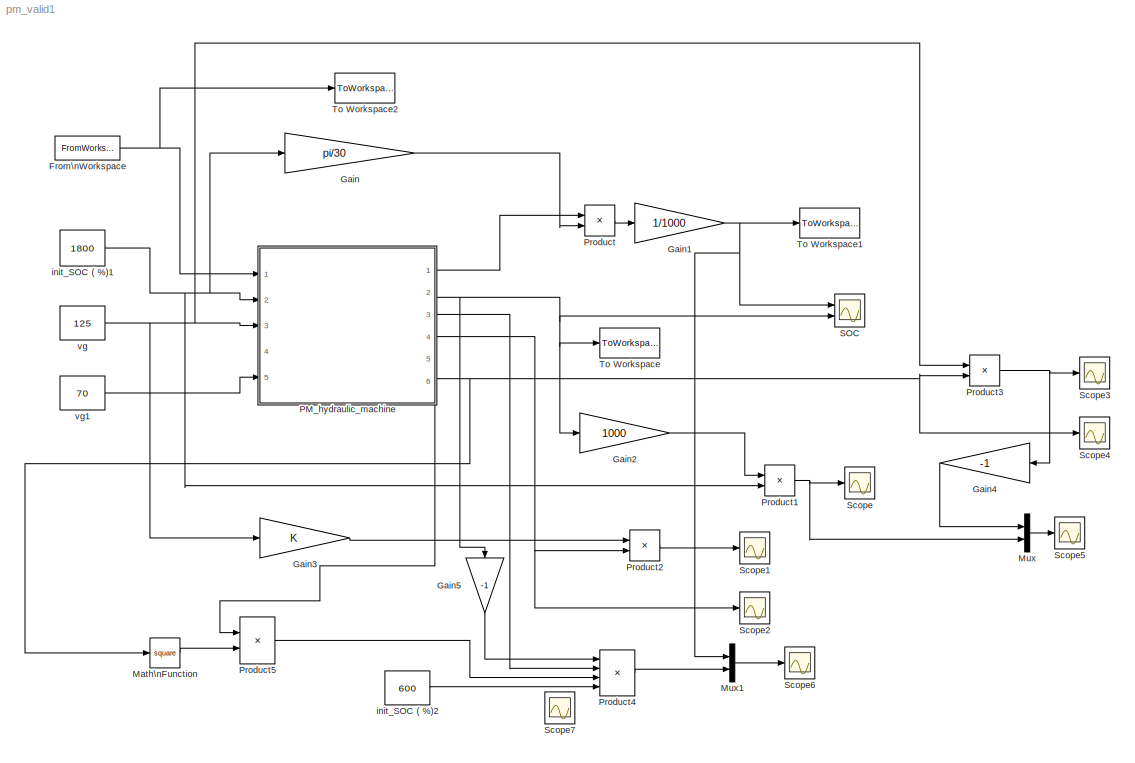
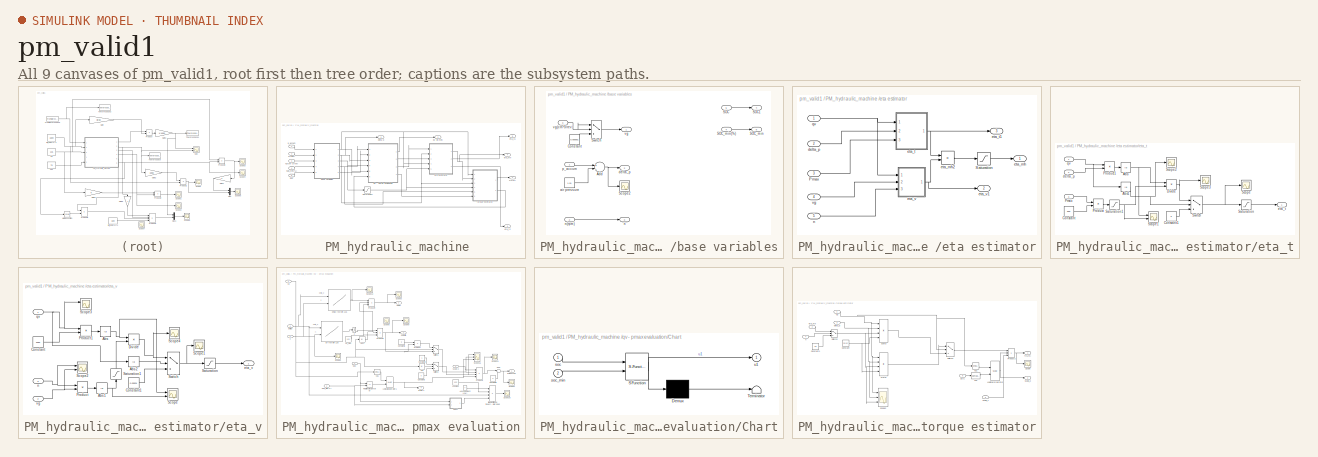
[diagram: thumbnail index - all 9 canvases of the model, root first then tree order]
MODEL pm_valid1
KIND model
BLOCK [FromWorkspace] From\nWorkspace
  SID = 624
  SampleTime = 0
  VariableName = Dp
  ZeroCross = on
BLOCK [Gain] Gain
  Gain = pi/30
  OutDataTypeStr = Inherit: Inherit via internal rule
  ParamDataTypeStr = Inherit: Inherit via internal rule
  SID = 628
  SaturateOnIntegerOverflow = off
BLOCK [Gain] Gain1
  Gain = 1/1000
  OutDataTypeStr = Inherit: Inherit via internal rule
  ParamDataTypeStr = Inherit: Inherit via internal rule
  SID = 629
  SaturateOnIntegerOverflow = off
BLOCK [Gain] Gain2
  Gain = 1000
  OutDataTypeStr = Inherit: Inherit via internal rule
  ParamDataTypeStr = Inherit: Inherit via internal rule
  SID = 632
  SaturateOnIntegerOverflow = off
BLOCK [Gain] Gain3
  OutDataTypeStr = Inherit: Inherit via internal rule
  ParamDataTypeStr = Inherit: Inherit via internal rule
  SID = 636
  SaturateOnIntegerOverflow = off
BLOCK [Gain] Gain4
  Gain = -1
  OutDataTypeStr = Inherit: Inherit via internal rule
  ParamDataTypeStr = Inherit: Inherit via internal rule
  SID = 645
  SaturateOnIntegerOverflow = off
BLOCK [Gain] Gain5
  Gain = -1
  OutDataTypeStr = Inherit: Inherit via internal rule
  ParamDataTypeStr = Inherit: Inherit via internal rule
  SID = 652
  SaturateOnIntegerOverflow = off
BLOCK [Math] Math\nFunction
  Operator = square
  Ports = [1, 1]
  SID = 657
BLOCK [Mux] Mux
  DisplayOption = bar
  Inputs = 2
  Ports = [2, 1]
  SID = 644
BLOCK [Mux] Mux1
  DisplayOption = bar
  Inputs = 2
  Ports = [2, 1]
  SID = 648
BLOCK [SubSystem] PM_hydraulic_machine 
  FunctionWithSeparateData = off
  MaskHideContents = off
  MinAlgLoopOccurrences = off
  Opaque = off
  Ports = [5, 6]
  PropExecContextOutsideSubsystem = off
  RTWSystemCode = Auto
  RequestExecContextInheritance = off
  SID = 341
BLOCK [Inport] PM_hydraulic_machine /SOC
  IconDisplay = Port number
  Port = 5
  SID = 346
BLOCK [Inport] PM_hydraulic_machine /SOC_min(%)
  IconDisplay = Port number
  Port = 4
  SID = 345
BLOCK [Saturate] PM_hydraulic_machine /Saturation1
  InputPortMap = u0
  LowerLimit = 0.00001
  Ports = [1, 1]
  SID = 347
  UpperLimit = inf
BLOCK [Outport] PM_hydraulic_machine /T(N.m)
  IconDisplay = Port number
  SID = 478
BLOCK [SubSystem] PM_hydraulic_machine /base variables
  FunctionWithSeparateData = off
  MaskHideContents = off
  MinAlgLoopOccurrences = off
  Opaque = off
  Ports = [5, 5]
  PropExecContextOutsideSubsystem = off
  RTWSystemCode = Auto
  RequestExecContextInheritance = off
  SID = 348
BLOCK [Sum] PM_hydraulic_machine /base variables/Add
  InputSameDT = off
  Inputs = +-
  OutDataTypeStr = Inherit: Inherit via internal rule
  Ports = [2, 1]
  SID = 354
  SaturateOnIntegerOverflow = off
BLOCK [Constant] PM_hydraulic_machine /base variables/Constant
  SID = 355
  Value = 0.000001
BLOCK [Inport] PM_hydraulic_machine /base variables/SOC
  IconDisplay = Port number
  Port = 5
  SID = 353
BLOCK [Outport] PM_hydraulic_machine /base variables/SOC1
  IconDisplay = Port number
  Port = 4
  SID = 362
BLOCK [Outport] PM_hydraulic_machine /base variables/SOC_min
  IconDisplay = Port number
  Port = 5
  SID = 363
BLOCK [Inport] PM_hydraulic_machine /base variables/SOC_min(%)
  IconDisplay = Port number
  Port = 4
  SID = 352
BLOCK [Scope] PM_hydraulic_machine /base variables/Scope2
  DataFormat = StructureWithTime
  Floating = off
  NumInputPorts = 1
  Ports = [1]
  SID = 356
  SampleTime = 0
  SaveName = ScopeData49
  TimeRange = 2
  YMax = 194
  YMin = 181
  ZoomMode = yonly
BLOCK [Switch] PM_hydraulic_machine /base variables/Switch
  Criteria = u2 ~= 0
  InputSameDT = off
  SID = 357
  SaturateOnIntegerOverflow = off
BLOCK [Constant] PM_hydraulic_machine /base variables/air pressure
  SID = 358
  Value = 1.01
BLOCK [Outport] PM_hydraulic_machine /base variables/delta_p
  IconDisplay = Port number
  Port = 2
  SID = 360
BLOCK [Outport] PM_hydraulic_machine /base variables/n
  IconDisplay = Port number
  Port = 3
  SID = 361
BLOCK [Inport] PM_hydraulic_machine /base variables/n(rpm)
  IconDisplay = Port number
  Port = 2
  SID = 350
BLOCK [Inport] PM_hydraulic_machine /base variables/p_accum
  IconDisplay = Port number
  SID = 349
BLOCK [Outport] PM_hydraulic_machine /base variables/vg
  IconDisplay = Port number
  SID = 359
BLOCK [Inport] PM_hydraulic_machine /base variables/vg(cm^3//rev)
  IconDisplay = Port number
  Port = 3
  SID = 351
BLOCK [Outport] PM_hydraulic_machine /delta p
  IconDisplay = Port number
  Port = 3
  SID = 480
BLOCK [SubSystem] PM_hydraulic_machine /eta estimator
  FunctionWithSeparateData = off
  MaskHideContents = off
  MinAlgLoopOccurrences = off
  Opaque = off
  Ports = [5, 3]
  PropExecContextOutsideSubsystem = off
  RTWSystemCode = Auto
  RequestExecContextInheritance = off
  SID = 364
BLOCK [Inport] PM_hydraulic_machine /eta estimator/Pmax
  IconDisplay = Port number
  Port = 3
  SID = 367
BLOCK [Saturate] PM_hydraulic_machine /eta estimator/Saturation
  InputPortMap = u0
  LowerLimit = 0.75
  Ports = [1, 1]
  SID = 370
  UpperLimit = 1
BLOCK [Inport] PM_hydraulic_machine /eta estimator/delta_p
  IconDisplay = Port number
  Port = 2
  SID = 366
BLOCK [Outport] PM_hydraulic_machine /eta estimator/eta_mh
  IconDisplay = Port number
  SID = 412
BLOCK [Product] PM_hydraulic_machine /eta estimator/eta_mh2
  InputSameDT = off
  Inputs = */
  OutDataTypeStr = Inherit: Inherit via internal rule
  Ports = [2, 1]
  RndMeth = Floor
  SID = 371
  SaturateOnIntegerOverflow = off
BLOCK [SubSystem] PM_hydraulic_machine /eta estimator/eta_t
  FunctionWithSeparateData = off
  MaskHideContents = off
  MinAlgLoopOccurrences = off
  Opaque = off
  Ports = [3, 1]
  PropExecContextOutsideSubsystem = off
  RTWSystemCode = Auto
  RequestExecContextInheritance = off
  SID = 372
BLOCK [Abs] PM_hydraulic_machine /eta estimator/eta_t/Abs
  SID = 376
  SaturateOnIntegerOverflow = off
BLOCK [Abs] PM_hydraulic_machine /eta estimator/eta_t/Abs1
  SID = 377
  SaturateOnIntegerOverflow = off
BLOCK [Constant] PM_hydraulic_machine /eta estimator/eta_t/Constant
  SID = 378
  Value = 600
BLOCK [Constant] PM_hydraulic_machine /eta estimator/eta_t/Constant1
  SID = 379
  Value = 0
BLOCK [Product] PM_hydraulic_machine /eta estimator/eta_t/Divide
  InputSameDT = off
  Inputs = */
  OutDataTypeStr = Inherit: Inherit via internal rule
  Ports = [2, 1]
  RndMeth = Floor
  SID = 380
  SaturateOnIntegerOverflow = off
BLOCK [Inport] PM_hydraulic_machine /eta estimator/eta_t/Pmax
  IconDisplay = Port number
  Port = 3
  SID = 375
BLOCK [Product] PM_hydraulic_machine /eta estimator/eta_t/Product
  InputSameDT = off
  OutDataTypeStr = Inherit: Inherit via internal rule
  Ports = [2, 1]
  SID = 381
  SaturateOnIntegerOverflow = off
BLOCK [Product] PM_hydraulic_machine /eta estimator/eta_t/Product1
  InputSameDT = off
  OutDataTypeStr = Inherit: Inherit via internal rule
  Ports = [2, 1]
  SID = 382
  SaturateOnIntegerOverflow = off
BLOCK [Saturate] PM_hydraulic_machine /eta estimator/eta_t/Saturation
  InputPortMap = u0
  LowerLimit = 0
  Ports = [1, 1]
  SID = 383
  UpperLimit = 1
BLOCK [Saturate] PM_hydraulic_machine /eta estimator/eta_t/Saturation1
  InputPortMap = u0
  LowerLimit = 0.0000001
  Ports = [1, 1]
  SID = 384
  UpperLimit = inf
BLOCK [Scope] PM_hydraulic_machine /eta estimator/eta_t/Scope
  DataFormat = StructureWithTime
  Floating = off
  NumInputPorts = 1
  Ports = [1]
  SID = 385
  SampleTime = 0
  SaveName = ScopeData29
  ZoomMode = xonly
BLOCK [Scope] PM_hydraulic_machine /eta estimator/eta_t/Scope1
  DataFormat = StructureWithTime
  Floating = off
  NumInputPorts = 2
  Ports = [2]
  SID = 386
  SampleTime = 0
  SaveName = ScopeData30
  TimeRange = 2.2
  YMax = 5~5
  YMin = -5~-5
BLOCK [Scope] PM_hydraulic_machine /eta estimator/eta_t/Scope2
  DataFormat = StructureWithTime
  Floating = off
  NumInputPorts = 1
  Ports = [1]
  SID = 387
  SampleTime = 0
  SaveName = ScopeData50
  YMax = 190
  YMin = 0
BLOCK [Scope] PM_hydraulic_machine /eta estimator/eta_t/Scope3
  DataFormat = StructureWithTime
  Floating = off
  NumInputPorts = 1
  Ports = [1]
  SID = 388
  SampleTime = 0
  SaveName = ScopeData51
  YMax = 190
  YMin = 0
BLOCK [Switch] PM_hydraulic_machine /eta estimator/eta_t/Switch
  InputSameDT = off
  SID = 389
  SaturateOnIntegerOverflow = off
  Threshold = 0.1
BLOCK [Inport] PM_hydraulic_machine /eta estimator/eta_t/delta_p
  IconDisplay = Port number
  Port = 2
  SID = 374
BLOCK [Outport] PM_hydraulic_machine /eta estimator/eta_t/eta_t
  IconDisplay = Port number
  SID = 390
BLOCK [Inport] PM_hydraulic_machine /eta estimator/eta_t/qv
  IconDisplay = Port number
  SID = 373
BLOCK [Outport] PM_hydraulic_machine /eta estimator/eta_t1
  IconDisplay = Port number
  Port = 3
  SID = 653
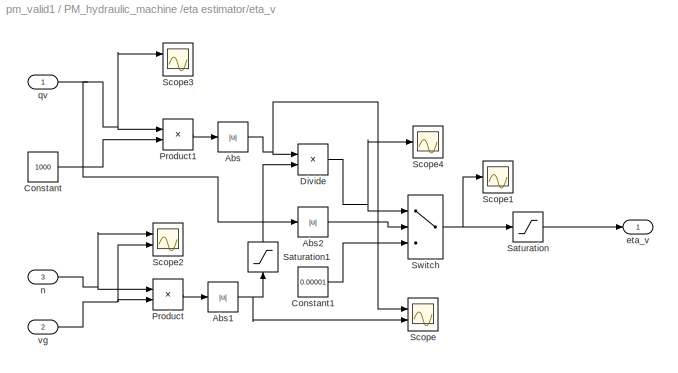
BLOCK [SubSystem] PM_hydraulic_machine /eta estimator/eta_v
  FunctionWithSeparateData = off
  MaskHideContents = off
  MinAlgLoopOccurrences = off
  Opaque = off
  Ports = [3, 1]
  PropExecContextOutsideSubsystem = off
  RTWSystemCode = Auto
  RequestExecContextInheritance = off
  SID = 391
BLOCK [Abs] PM_hydraulic_machine /eta estimator/eta_v/Abs
  SID = 395
  SaturateOnIntegerOverflow = off
BLOCK [Abs] PM_hydraulic_machine /eta estimator/eta_v/Abs1
  SID = 396
  SaturateOnIntegerOverflow = off
BLOCK [Abs] PM_hydraulic_machine /eta estimator/eta_v/Abs2
  SID = 397
  SaturateOnIntegerOverflow = off
BLOCK [Constant] PM_hydraulic_machine /eta estimator/eta_v/Constant
  SID = 398
  Value = 1000
BLOCK [Constant] PM_hydraulic_machine /eta estimator/eta_v/Constant1
  SID = 399
  Value = 0.00001
BLOCK [Product] PM_hydraulic_machine /eta estimator/eta_v/Divide
  InputSameDT = off
  Inputs = */
  OutDataTypeStr = Inherit: Inherit via internal rule
  Ports = [2, 1]
  RndMeth = Floor
  SID = 400
  SaturateOnIntegerOverflow = off
BLOCK [Product] PM_hydraulic_machine /eta estimator/eta_v/Product
  InputSameDT = off
  OutDataTypeStr = Inherit: Inherit via internal rule
  Ports = [2, 1]
  SID = 401
  SaturateOnIntegerOverflow = off
BLOCK [Product] PM_hydraulic_machine /eta estimator/eta_v/Product1
  InputSameDT = off
  OutDataTypeStr = Inherit: Inherit via internal rule
  Ports = [2, 1]
  SID = 402
  SaturateOnIntegerOverflow = off
BLOCK [Saturate] PM_hydraulic_machine /eta estimator/eta_v/Saturation
  InputPortMap = u0
  LowerLimit = 0.000001
  Ports = [1, 1]
  SID = 403
  UpperLimit = 1
BLOCK [Saturate] PM_hydraulic_machine /eta estimator/eta_v/Saturation1
  InputPortMap = u0
  LowerLimit = 0.0000001
  Ports = [1, 1]
  SID = 404
  UpperLimit = inf
BLOCK [Scope] PM_hydraulic_machine /eta estimator/eta_v/Scope
  DataFormat = StructureWithTime
  Floating = off
  NumInputPorts = 2
  Ports = [2]
  SID = 405
  SampleTime = 0
  SaveName = ScopeData43
  TimeRange = 2
  YMax = 5~5
  YMin = -5~-5
  ZoomMode = yonly
BLOCK [Scope] PM_hydraulic_machine /eta estimator/eta_v/Scope1
  DataFormat = StructureWithTime
  Floating = off
  NumInputPorts = 1
  Ports = [1]
  SID = 406
  SampleTime = 0
  SaveName = ScopeData44
  TimeRange = 2
  ZoomMode = yonly
BLOCK [Scope] PM_hydraulic_machine /eta estimator/eta_v/Scope2
  DataFormat = StructureWithTime
  Floating = off
  NumInputPorts = 2
  Ports = [2]
  SID = 407
  SampleTime = 0
  SaveName = ScopeData45
  TimeRange = 2
  YMax = 5~5
  YMin = -5~-5
  ZoomMode = yonly
BLOCK [Scope] PM_hydraulic_machine /eta estimator/eta_v/Scope3
  DataFormat = StructureWithTime
  Floating = off
  NumInputPorts = 2
  Ports = [2]
  SID = 408
  SampleTime = 0
  SaveName = ScopeData46
  TimeRange = 2
  YMax = 5~5
  YMin = -5~-5
  ZoomMode = yonly
BLOCK [Scope] PM_hydraulic_machine /eta estimator/eta_v/Scope4
  DataFormat = StructureWithTime
  Floating = off
  NumInputPorts = 1
  Ports = [1]
  SID = 409
  SampleTime = 0
  SaveName = ScopeData52
  ZoomMode = yonly
BLOCK [Switch] PM_hydraulic_machine /eta estimator/eta_v/Switch
  InputSameDT = off
  SID = 410
  SaturateOnIntegerOverflow = off
  Threshold = 1
BLOCK [Outport] PM_hydraulic_machine /eta estimator/eta_v/eta_v
  IconDisplay = Port number
  SID = 411
BLOCK [Inport] PM_hydraulic_machine /eta estimator/eta_v/n
  IconDisplay = Port number
  Port = 3
  SID = 394
BLOCK [Inport] PM_hydraulic_machine /eta estimator/eta_v/qv
  IconDisplay = Port number
  SID = 392
BLOCK [Inport] PM_hydraulic_machine /eta estimator/eta_v/vg
  IconDisplay = Port number
  Port = 2
  SID = 393
BLOCK [Outport] PM_hydraulic_machine /eta estimator/eta_v1
  IconDisplay = Port number
  Port = 2
  SID = 639
BLOCK [Inport] PM_hydraulic_machine /eta estimator/n
  IconDisplay = Port number
  Port = 5
  SID = 369
BLOCK [Inport] PM_hydraulic_machine /eta estimator/qv
  IconDisplay = Port number
  SID = 365
BLOCK [Inport] PM_hydraulic_machine /eta estimator/vg
  IconDisplay = Port number
  Port = 4
  SID = 368
BLOCK [Outport] PM_hydraulic_machine /eta_mh
  IconDisplay = Port number
  Port = 4
  SID = 634
BLOCK [Outport] PM_hydraulic_machine /eta_t2
  IconDisplay = Port number
  Port = 6
  SID = 654
BLOCK [Outport] PM_hydraulic_machine /eta_v1
  IconDisplay = Port number
  Port = 5
  SID = 640
BLOCK [Inport] PM_hydraulic_machine /n(rpm)
  IconDisplay = Port number
  Port = 2
  SID = 343
BLOCK [Inport] PM_hydraulic_machine /p_accum
  IconDisplay = Port number
  SID = 342
BLOCK [Outport] PM_hydraulic_machine /qv (lit//min)
  IconDisplay = Port number
  Port = 2
  SID = 479
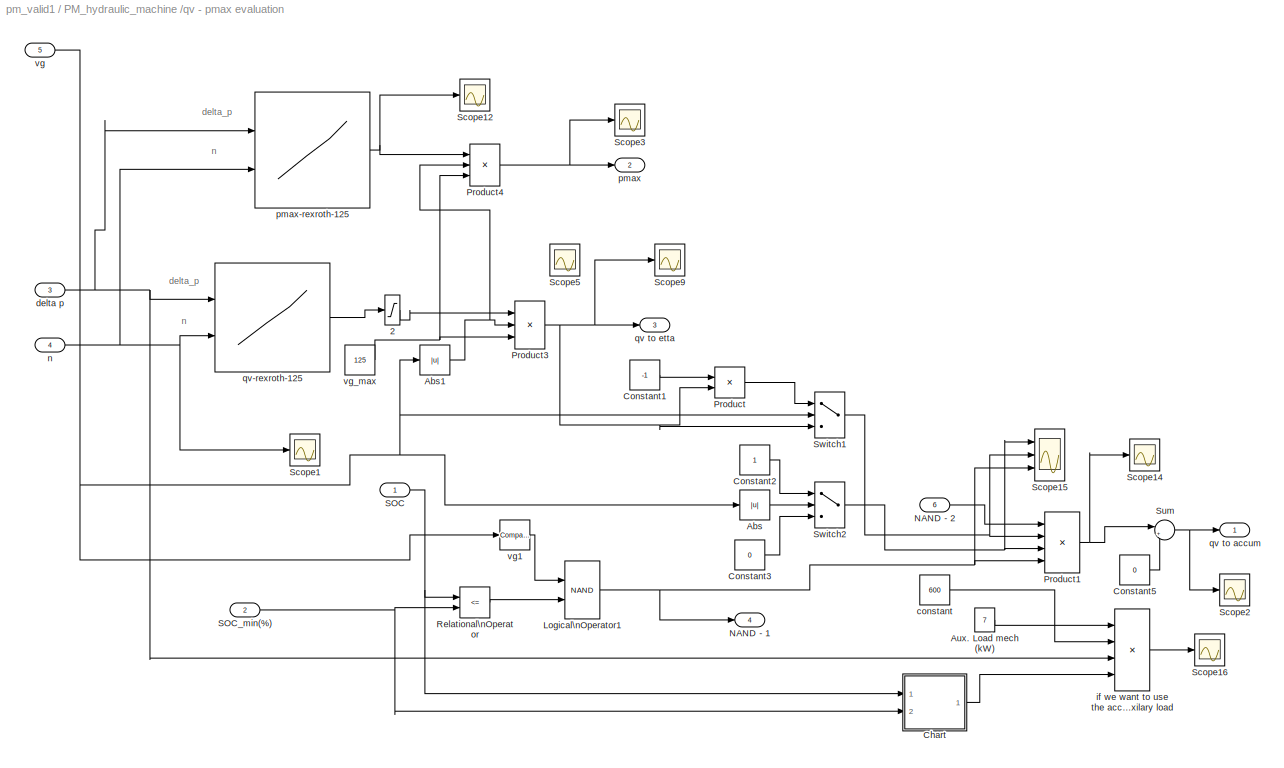
BLOCK [SubSystem] PM_hydraulic_machine /qv - pmax evaluation
  FunctionWithSeparateData = off
  MaskHideContents = off
  MinAlgLoopOccurrences = off
  Opaque = off
  Ports = [6, 4]
  PropExecContextOutsideSubsystem = off
  RTWSystemCode = Auto
  RequestExecContextInheritance = off
  SID = 413
BLOCK [Saturate] PM_hydraulic_machine /qv - pmax evaluation/2
  InputPortMap = u0
  LowerLimit = 0
  Ports = [1, 1]
  SID = 420
  UpperLimit = inf
BLOCK [Abs] PM_hydraulic_machine /qv - pmax evaluation/Abs
  SID = 421
  SaturateOnIntegerOverflow = off
BLOCK [Abs] PM_hydraulic_machine /qv - pmax evaluation/Abs1
  SID = 422
  SaturateOnIntegerOverflow = off
BLOCK [Constant] PM_hydraulic_machine /qv - pmax evaluation/Aux. Load mech (kW)
  SID = 423
  Value = 7
BLOCK [SubSystem] PM_hydraulic_machine /qv - pmax evaluation/Chart
  ErrorFcn = Stateflow.Translate.translate
  FunctionWithSeparateData = off
  MaskDescription = Stateflow diagram
  MaskDisplay = plot(sf('Private','sfblk','xIcon'),sf('Private','sfblk','yIcon'));text(0.5,0,sf('Private', 'sfblk', 'tIcon'),'HorizontalAl','Center','VerticalAl','Bottom');
  MaskHideContents = off
  MaskIconFrame = off
  MaskIconOpaque = off
  MaskIconRotate = none
  MaskIconUnits = autoscale
  MaskPortRotate = default
  MaskSelfModifiable = on
  MaskType = Stateflow
  MinAlgLoopOccurrences = off
  Opaque = off
  PermitHierarchicalResolution = ExplicitOnly
  Ports = [2, 1]
  PropExecContextOutsideSubsystem = off
  RTWSystemCode = Auto
  RequestExecContextInheritance = off
  SID = 424
  TreatAsAtomicUnit = on
BLOCK [Demux] PM_hydraulic_machine /qv - pmax evaluation/Chart/ Demux 
  Outputs = 1
  Ports = [1, 1]
  SID = 424::8
BLOCK [S-Function] PM_hydraulic_machine /qv - pmax evaluation/Chart/ SFunction 
  EnableBusSupport = on
  FunctionName = sf_sfun
  PortCounts = [2 2]
  Ports = [2, 2]
  SID = 424::7
  Tag = Stateflow S-Function pm_valid1 4
BLOCK [Terminator] PM_hydraulic_machine /qv - pmax evaluation/Chart/ Terminator 
  SID = 424::10
BLOCK [Inport] PM_hydraulic_machine /qv - pmax evaluation/Chart/soc
  IconDisplay = Port number
  SID = 424::1
BLOCK [Inport] PM_hydraulic_machine /qv - pmax evaluation/Chart/soc_min
  IconDisplay = Port number
  Port = 2
  SID = 424::2
BLOCK [Outport] PM_hydraulic_machine /qv - pmax evaluation/Chart/u1
  IconDisplay = Port number
  SID = 424::6
BLOCK [Constant] PM_hydraulic_machine /qv - pmax evaluation/Constant1
  SID = 425
  Value = -1
BLOCK [Constant] PM_hydraulic_machine /qv - pmax evaluation/Constant2
  SID = 426
BLOCK [Constant] PM_hydraulic_machine /qv - pmax evaluation/Constant3
  SID = 427
  Value = 0
BLOCK [Constant] PM_hydraulic_machine /qv - pmax evaluation/Constant5
  SID = 428
  Value = 0
BLOCK [Logic] PM_hydraulic_machine /qv - pmax evaluation/Logical\nOperator1
  AllPortsSameDT = off
  Operator = NAND
  OutDataTypeStr = boolean
  Ports = [2, 1]
  SID = 429
BLOCK [Outport] PM_hydraulic_machine /qv - pmax evaluation/NAND - 1
  IconDisplay = Port number
  Port = 4
  SID = 456
BLOCK [Inport] PM_hydraulic_machine /qv - pmax evaluation/NAND - 2
  IconDisplay = Port number
  Port = 6
  SID = 419
BLOCK [Product] PM_hydraulic_machine /qv - pmax evaluation/Product
  InputSameDT = off
  OutDataTypeStr = Inherit: Inherit via internal rule
  Ports = [2, 1]
  SID = 430
  SaturateOnIntegerOverflow = off
BLOCK [Product] PM_hydraulic_machine /qv - pmax evaluation/Product1
  InputSameDT = off
  Inputs = 4
  OutDataTypeStr = Inherit: Inherit via internal rule
  Ports = [4, 1]
  SID = 431
  SaturateOnIntegerOverflow = off
BLOCK [Product] PM_hydraulic_machine /qv - pmax evaluation/Product3
  InputSameDT = off
  Inputs = **/
  OutDataTypeStr = Inherit: Inherit via internal rule
  Ports = [3, 1]
  SID = 432
  SaturateOnIntegerOverflow = off
BLOCK [Product] PM_hydraulic_machine /qv - pmax evaluation/Product4
  InputSameDT = off
  Inputs = **/
  OutDataTypeStr = Inherit: Inherit via internal rule
  Ports = [3, 1]
  SID = 433
  SaturateOnIntegerOverflow = off
BLOCK [RelationalOperator] PM_hydraulic_machine /qv - pmax evaluation/Relational\nOperator
  InputSameDT = off
  Operator = <=
  OutDataTypeStr = boolean
  Ports = [2, 1]
  SID = 434
BLOCK [Inport] PM_hydraulic_machine /qv - pmax evaluation/SOC
  IconDisplay = Port number
  SID = 414
BLOCK [Inport] PM_hydraulic_machine /qv - pmax evaluation/SOC_min(%)
  IconDisplay = Port number
  Port = 2
  SID = 415
BLOCK [Scope] PM_hydraulic_machine /qv - pmax evaluation/Scope1
  DataFormat = StructureWithTime
  Floating = off
  NumInputPorts = 1
  Ports = [1]
  SID = 435
  SampleTime = 0
  SaveName = ScopeData79
  YMax = 880
  YMin = 660
  ZoomMode = xonly
BLOCK [Scope] PM_hydraulic_machine /qv - pmax evaluation/Scope12
  DataFormat = StructureWithTime
  Floating = off
  NumInputPorts = 1
  Ports = [1]
  SID = 436
  SampleTime = 0
  SaveName = ScopeData81
  YMax = 350
  YMin = -200
BLOCK [Scope] PM_hydraulic_machine /qv - pmax evaluation/Scope14
  DataFormat = StructureWithTime
  Floating = off
  NumInputPorts = 1
  Ports = [1]
  SID = 437
  SampleTime = 0
  SaveName = ScopeData54
  TimeRange = 2
  YMax = 5.413
  YMin = 5.391
  ZoomMode = yonly
BLOCK [Scope] PM_hydraulic_machine /qv - pmax evaluation/Scope15
  DataFormat = StructureWithTime
  Floating = off
  NumInputPorts = 3
  Ports = [3]
  SID = 438
  SampleTime = 0
  SaveName = ScopeData72
  YMax = 350~5~5
  YMin = -200~-5~-5
  ZoomMode = yonly
BLOCK [Scope] PM_hydraulic_machine /qv - pmax evaluation/Scope16
  DataFormat = StructureWithTime
  Floating = off
  NumInputPorts = 1
  Ports = [1]
  SID = 439
  SampleTime = 0
  SaveName = ScopeData96
  YMax = 6.1
  YMin = 5.45
  ZoomMode = xonly
BLOCK [Scope] PM_hydraulic_machine /qv - pmax evaluation/Scope2
  DataFormat = StructureWithTime
  Floating = off
  NumInputPorts = 1
  Ports = [1]
  SID = 440
  SampleTime = 0
  SaveName = ScopeData85
  YMax = 85
  YMin = -15
  ZoomMode = xonly
BLOCK [Scope] PM_hydraulic_machine /qv - pmax evaluation/Scope3
  DataFormat = StructureWithTime
  Floating = off
  NumInputPorts = 1
  Ports = [1]
  SID = 441
  SampleTime = 0
  SaveName = ScopeData87
  YMax = 350
  YMin = -200
BLOCK [Scope] PM_hydraulic_machine /qv - pmax evaluation/Scope5
  DataFormat = StructureWithTime
  Floating = off
  NumInputPorts = 1
  Ports = [1]
  SID = 442
  SampleTime = 0
  SaveName = ScopeData82
  TimeRange = 2
  YMax = 350
  YMin = -200
  ZoomMode = yonly
BLOCK [Scope] PM_hydraulic_machine /qv - pmax evaluation/Scope9
  DataFormat = StructureWithTime
  Floating = off
  NumInputPorts = 1
  Ports = [1]
  SID = 443
  SampleTime = 0
  SaveName = ScopeData86
  YMax = 350
  YMin = -200
BLOCK [Sum] PM_hydraulic_machine /qv - pmax evaluation/Sum
  IconShape = round
  InputSameDT = off
  Inputs = |+-
  OutDataTypeStr = Inherit: Inherit via internal rule
  Ports = [2, 1]
  SID = 444
  SaturateOnIntegerOverflow = off
BLOCK [Switch] PM_hydraulic_machine /qv - pmax evaluation/Switch1
  Criteria = u2 > Threshold
  InputSameDT = off
  SID = 445
  SaturateOnIntegerOverflow = off
BLOCK [Switch] PM_hydraulic_machine /qv - pmax evaluation/Switch2
  Criteria = u2 > Threshold
  InputSameDT = off
  SID = 446
  SaturateOnIntegerOverflow = off
  Threshold = 0.001
BLOCK [Constant] PM_hydraulic_machine /qv - pmax evaluation/constant
  SID = 447
  Value = 600
BLOCK [Inport] PM_hydraulic_machine /qv - pmax evaluation/delta p
  IconDisplay = Port number
  Port = 3
  SID = 416
BLOCK [Product] PM_hydraulic_machine /qv - pmax evaluation/if we want to use the accumulator for auxilary load
  InputSameDT = off
  Inputs = **/*
  OutDataTypeStr = Inherit: Inherit via internal rule
  Ports = [4, 1]
  SID = 448
  SaturateOnIntegerOverflow = off
BLOCK [Inport] PM_hydraulic_machine /qv - pmax evaluation/n
  IconDisplay = Port number
  Port = 4
  SID = 417
BLOCK [Outport] PM_hydraulic_machine /qv - pmax evaluation/pmax
  IconDisplay = Port number
  Port = 2
  SID = 454
BLOCK [Lookup2D] PM_hydraulic_machine /qv - pmax evaluation/pmax-rexroth-125
  ColumnIndex = [800:100:1800]
  InputSameDT = off
  RowIndex = [0:10:350]
  SID = 449
  SaturateOnIntegerOverflow = off
  Table = pmax_125
BLOCK [Outport] PM_hydraulic_machine /qv - pmax evaluation/qv to accum
  IconDisplay = Port number
  SID = 453
BLOCK [Outport] PM_hydraulic_machine /qv - pmax evaluation/qv to etta
  IconDisplay = Port number
  Port = 3
  SID = 455
BLOCK [Lookup2D] PM_hydraulic_machine /qv - pmax evaluation/qv-rexroth-125
  ColumnIndex = [100:100:1800]
  InputSameDT = off
  RowIndex = [0:10:350]
  SID = 450
  SaturateOnIntegerOverflow = off
  Table = qv_125_n
BLOCK [Inport] PM_hydraulic_machine /qv - pmax evaluation/vg
  IconDisplay = Port number
  Port = 5
  SID = 418
BLOCK [Reference] PM_hydraulic_machine /qv - pmax evaluation/vg1  REF=simulink/Logic and Bit\nOperations/Compare\nTo Constant
  FunctionWithSeparateData = off
  GeneratePreprocessorConditionals = off
  LogicOutDataTypeMode = uint8
  Ports = [1, 1]
  RTWMemSecDataConstants = Inherit from model
  RTWMemSecDataInternal = Inherit from model
  RTWMemSecDataParameters = Inherit from model
  RTWMemSecFuncExecute = Inherit from model
  RTWMemSecFuncInitTerm = Inherit from model
  SID = 451
  ShowPortLabels = FromPortIcon
  SourceBlock = simulink/Logic and Bit\nOperations/Compare\nTo Constant
  SourceType = Compare To Constant
  SystemSampleTime = -1
  ZeroCross = off
  const = 0
  relop = >
BLOCK [Constant] PM_hydraulic_machine /qv - pmax evaluation/vg_max
  SID = 452
  Value = 125
BLOCK [SubSystem] PM_hydraulic_machine /torque estimator
  FunctionWithSeparateData = off
  MaskHideContents = off
  MinAlgLoopOccurrences = off
  Opaque = off
  Ports = [6, 2]
  PropExecContextOutsideSubsystem = off
  RTWSystemCode = Auto
  RequestExecContextInheritance = off
  SID = 457
BLOCK [Constant] PM_hydraulic_machine /torque estimator/Constant
  SID = 464
  Value = 20*pi
BLOCK [Constant] PM_hydraulic_machine /torque estimator/Constant1
  SID = 465
  Value = 0.9
BLOCK [Logic] PM_hydraulic_machine /torque estimator/Logical\nOperator
  AllPortsSameDT = off
  Operator = NAND
  OutDataTypeStr = boolean
  Ports = [2, 1]
  SID = 466
BLOCK [Inport] PM_hydraulic_machine /torque estimator/NAND_1
  IconDisplay = Port number
  Port = 6
  SID = 463
BLOCK [Outport] PM_hydraulic_machine /torque estimator/NAND_2
  IconDisplay = Port number
  Port = 2
  SID = 477
BLOCK [Product] PM_hydraulic_machine /torque estimator/Product2
  InputSameDT = off
  Inputs = 3
  OutDataTypeStr = Inherit: Inherit via internal rule
  Ports = [3, 1]
  SID = 467
  SaturateOnIntegerOverflow = off
BLOCK [Inport] PM_hydraulic_machine /torque estimator/SOC
  IconDisplay = Port number
  Port = 5
  SID = 462
BLOCK [Scope] PM_hydraulic_machine /torque estimator/Scope
  DataFormat = StructureWithTime
  Floating = off
  NumInputPorts = 1
  Ports = [1]
  SID = 468
  SampleTime = 0
  SaveName = ScopeData6
  YMax = 300
  YMin = -100
  ZoomMode = xonly
BLOCK [Scope] PM_hydraulic_machine /torque estimator/Scope2
  DataFormat = StructureWithTime
  Floating = off
  NumInputPorts = 3
  Ports = [3]
  SID = 469
  SampleTime = 0
  SaveName = ScopeData8
  YMax = 75~170~0.86
  YMin = -20~167.7~0.75
  ZoomMode = xonly
BLOCK [Switch] PM_hydraulic_machine /torque estimator/Switch1
  Criteria = u2 > Threshold
  InputSameDT = off
  SID = 470
  SaturateOnIntegerOverflow = off
BLOCK [Switch] PM_hydraulic_machine /torque estimator/Switch2
  Criteria = u2 > Threshold
  InputSameDT = off
  SID = 471
  SaturateOnIntegerOverflow = off
  Threshold = 400
BLOCK [Outport] PM_hydraulic_machine /torque estimator/T(N.m)
  IconDisplay = Port number
  SID = 476
BLOCK [Inport] PM_hydraulic_machine /torque estimator/delta_p
  IconDisplay = Port number
  Port = 3
  SID = 460
BLOCK [Inport] PM_hydraulic_machine /torque estimator/eta_mh
  IconDisplay = Port number
  Port = 2
  SID = 459
BLOCK [Product] PM_hydraulic_machine /torque estimator/motor
  InputSameDT = off
  Inputs = ***/
  OutDataTypeStr = Inherit: Inherit via internal rule
  Ports = [4, 1]
  RndMeth = Floor
  SID = 472
  SaturateOnIntegerOverflow = off
BLOCK [Inport] PM_hydraulic_machine /torque estimator/n
  IconDisplay = Port number
  Port = 4
  SID = 461
BLOCK [Product] PM_hydraulic_machine /torque estimator/pump
  InputSameDT = off
  Inputs = **//
  OutDataTypeStr = Inherit: Inherit via internal rule
  Ports = [4, 1]
  RndMeth = Floor
  SID = 473
  SaturateOnIntegerOverflow = off
BLOCK [Reference] PM_hydraulic_machine /torque estimator/soc  REF=simulink/Logic and Bit\nOperations/Compare\nTo Constant
  FunctionWithSeparateData = off
  GeneratePreprocessorConditionals = off
  LogicOutDataTypeMode = uint8
  Ports = [1, 1]
  RTWMemSecDataConstants = Inherit from model
  RTWMemSecDataInternal = Inherit from model
  RTWMemSecDataParameters = Inherit from model
  RTWMemSecFuncExecute = Inherit from model
  RTWMemSecFuncInitTerm = Inherit from model
  SID = 474
  ShowPortLabels = FromPortIcon
  SourceBlock = simulink/Logic and Bit\nOperations/Compare\nTo Constant
  SourceType = Compare To Constant
  SystemSampleTime = -1
  ZeroCross = off
  const = 100
  relop = >=
BLOCK [Inport] PM_hydraulic_machine /torque estimator/vg
  IconDisplay = Port number
  SID = 458
BLOCK [Reference] PM_hydraulic_machine /torque estimator/vg1  REF=simulink/Logic and Bit\nOperations/Compare\nTo Constant
  FunctionWithSeparateData = off
  GeneratePreprocessorConditionals = off
  LogicOutDataTypeMode = uint8
  Ports = [1, 1]
  RTWMemSecDataConstants = Inherit from model
  RTWMemSecDataInternal = Inherit from model
  RTWMemSecDataParameters = Inherit from model
  RTWMemSecFuncExecute = Inherit from model
  RTWMemSecFuncInitTerm = Inherit from model
  SID = 475
  ShowPortLabels = FromPortIcon
  SourceBlock = simulink/Logic and Bit\nOperations/Compare\nTo Constant
  SourceType = Compare To Constant
  SystemSampleTime = -1
  ZeroCross = off
  const = 0
  relop = <
BLOCK [Inport] PM_hydraulic_machine /vg(cm^3//rev)
  IconDisplay = Port number
  Port = 3
  SID = 344
BLOCK [Product] Product
  InputSameDT = off
  OutDataTypeStr = Inherit: Inherit via internal rule
  Ports = [2, 1]
  SID = 627
  SaturateOnIntegerOverflow = off
BLOCK [Product] Product1
  InputSameDT = off
  Inputs = */
  OutDataTypeStr = Inherit: Inherit via internal rule
  Ports = [2, 1]
  SID = 631
  SaturateOnIntegerOverflow = off
BLOCK [Product] Product2
  InputSameDT = off
  Inputs = **
  OutDataTypeStr = Inherit: Inherit via internal rule
  Ports = [2, 1]
  SID = 635
  SaturateOnIntegerOverflow = off
BLOCK [Product] Product3
  InputSameDT = off
  Inputs = **
  OutDataTypeStr = Inherit: Inherit via internal rule
  Ports = [2, 1]
  SID = 641
  SaturateOnIntegerOverflow = off
BLOCK [Product] Product4
  InputSameDT = off
  Inputs = ***/
  OutDataTypeStr = Inherit: Inherit via internal rule
  Ports = [4, 1]
  SID = 647
  SaturateOnIntegerOverflow = off
BLOCK [Product] Product5
  InputSameDT = off
  Inputs = */
  OutDataTypeStr = Inherit: Inherit via internal rule
  Ports = [2, 1]
  SID = 656
  SaturateOnIntegerOverflow = off
BLOCK [Scope] SOC
  DataFormat = StructureWithTime
  Floating = off
  LimitDataPoints = off
  NumInputPorts = 2
  Ports = [2]
  SID = 481
  SampleTime = 0
  SaveName = ScopeData9
  YMax = 70~5
  YMin = 17.5~-5
  ZoomMode = yonly
BLOCK [Scope] Scope
  DataFormat = StructureWithTime
  Floating = off
  NumInputPorts = 1
  Ports = [1]
  SID = 633
  SampleTime = 0
BLOCK [Scope] Scope1
  DataFormat = StructureWithTime
  Floating = off
  NumInputPorts = 1
  Ports = [1]
  SID = 637
  SampleTime = 0
  SaveName = ScopeData1
BLOCK [Scope] Scope2
  DataFormat = StructureWithTime
  Floating = off
  NumInputPorts = 1
  Ports = [1]
  SID = 638
  SampleTime = 0
  SaveName = ScopeData2
BLOCK [Scope] Scope3
  DataFormat = StructureWithTime
  Floating = off
  NumInputPorts = 1
  Ports = [1]
  SID = 642
  SampleTime = 0
  SaveName = ScopeData3
BLOCK [Scope] Scope4
  DataFormat = StructureWithTime
  Floating = off
  NumInputPorts = 1
  Ports = [1]
  SID = 643
  SampleTime = 0
  SaveName = ScopeData4
BLOCK [Scope] Scope5
  DataFormat = StructureWithTime
  Floating = off
  NumInputPorts = 1
  Ports = [1]
  SID = 646
  SampleTime = 0
  SaveName = ScopeData5
BLOCK [Scope] Scope6
  DataFormat = StructureWithTime
  Floating = off
  NumInputPorts = 1
  Ports = [1]
  SID = 649
  SampleTime = 0
  SaveName = ScopeData7
BLOCK [Scope] Scope7
  DataFormat = StructureWithTime
  Floating = off
  NumInputPorts = 1
  Ports = [1]
  SID = 655
  SampleTime = 0
  SaveName = ScopeData10
BLOCK [ToWorkspace] To Workspace
  FixptAsFi = on
  MaxDataPoints = inf
  Ports = [1]
  SID = 625
  SampleTime = -1
  SaveFormat = Structure With Time
  VariableName = qv
BLOCK [ToWorkspace] To Workspace1
  FixptAsFi = on
  MaxDataPoints = inf
  Ports = [1]
  SID = 626
  SampleTime = -1
  SaveFormat = Structure With Time
  VariableName = pow
BLOCK [ToWorkspace] To Workspace2
  FixptAsFi = on
  MaxDataPoints = inf
  Ports = [1]
  SID = 630
  SampleTime = -1
  SaveFormat = Structure With Time
  VariableName = Dp1
BLOCK [Constant] init_SOC ( %)1
  SID = 623
  Value = 1800
BLOCK [Constant] init_SOC ( %)2
  SID = 650
  Value = 600
BLOCK [Constant] vg
  SID = 619
  Value = 125
BLOCK [Constant] vg1
  SID = 651
  Value = 70
ANNOTATION PM_hydraulic_machine /qv - pmax evaluation: delta_p
ANNOTATION PM_hydraulic_machine /qv - pmax evaluation: n
NET From\nWorkspace:1 -> PM_hydraulic_machine :1, To Workspace2:1
NET Gain1:1 -> Mux1:1, SOC:1, To Workspace1:1
LINE Gain2:1 -> Product1:1
LINE Gain3:1 -> Product2:1
LINE Gain4:1 -> Mux:1
LINE Gain5:1 -> Product4:1
LINE Gain:1 -> Product:2
LINE Math\nFunction:1 -> Product5:2
LINE Mux1:1 -> Scope6:1
LINE Mux:1 -> Scope5:1
LINE PM_hydraulic_machine /SOC:1 -> PM_hydraulic_machine /base variables:5
LINE PM_hydraulic_machine /SOC_min(%):1 -> PM_hydraulic_machine /base variables:4
NET PM_hydraulic_machine /Saturation1:1 -> PM_hydraulic_machine /eta estimator:5, PM_hydraulic_machine /torque estimator:4
NET PM_hydraulic_machine /base variables/Add:1 -> PM_hydraulic_machine /base variables/Scope2:1, PM_hydraulic_machine /base variables/delta_p:1
LINE PM_hydraulic_machine /base variables/Constant:1 -> PM_hydraulic_machine /base variables/Switch:3
LINE PM_hydraulic_machine /base variables/SOC:1 -> PM_hydraulic_machine /base variables/SOC1:1
LINE PM_hydraulic_machine /base variables/SOC_min(%):1 -> PM_hydraulic_machine /base variables/SOC_min:1
LINE PM_hydraulic_machine /base variables/Switch:1 -> PM_hydraulic_machine /base variables/vg:1
LINE PM_hydraulic_machine /base variables/air pressure:1 -> PM_hydraulic_machine /base variables/Add:2
LINE PM_hydraulic_machine /base variables/n(rpm):1 -> PM_hydraulic_machine /base variables/n:1
LINE PM_hydraulic_machine /base variables/p_accum:1 -> PM_hydraulic_machine /base variables/Add:1
NET PM_hydraulic_machine /base variables/vg(cm^3//rev):1 -> PM_hydraulic_machine /base variables/Switch:1, PM_hydraulic_machine /base variables/Switch:2
NET PM_hydraulic_machine /base variables:1 -> PM_hydraulic_machine /eta estimator:4, PM_hydraulic_machine /qv - pmax evaluation:5, PM_hydraulic_machine /torque estimator:1
NET PM_hydraulic_machine /base variables:2 -> PM_hydraulic_machine /delta p:1, PM_hydraulic_machine /eta estimator:2, PM_hydraulic_machine /qv - pmax evaluation:3, PM_hydraulic_machine /torque estimator:3
NET PM_hydraulic_machine /base variables:3 -> PM_hydraulic_machine /Saturation1:1, PM_hydraulic_machine /qv - pmax evaluation:4
NET PM_hydraulic_machine /base variables:4 -> PM_hydraulic_machine /qv - pmax evaluation:1, PM_hydraulic_machine /torque estimator:5
LINE PM_hydraulic_machine /base variables:5 -> PM_hydraulic_machine /qv - pmax evaluation:2
LINE PM_hydraulic_machine /eta estimator/Pmax:1 -> PM_hydraulic_machine /eta estimator/eta_t:3
LINE PM_hydraulic_machine /eta estimator/Saturation:1 -> PM_hydraulic_machine /eta estimator/eta_mh:1
LINE PM_hydraulic_machine /eta estimator/delta_p:1 -> PM_hydraulic_machine /eta estimator/eta_t:2
LINE PM_hydraulic_machine /eta estimator/eta_mh2:1 -> PM_hydraulic_machine /eta estimator/Saturation:1
NET PM_hydraulic_machine /eta estimator/eta_t/Abs1:1 -> PM_hydraulic_machine /eta estimator/eta_t/Scope2:1, PM_hydraulic_machine /eta estimator/eta_t/Switch:2
NET PM_hydraulic_machine /eta estimator/eta_t/Abs:1 -> PM_hydraulic_machine /eta estimator/eta_t/Divide:1, PM_hydraulic_machine /eta estimator/eta_t/Scope1:1
LINE PM_hydraulic_machine /eta estimator/eta_t/Constant1:1 -> PM_hydraulic_machine /eta estimator/eta_t/Switch:3
LINE PM_hydraulic_machine /eta estimator/eta_t/Constant:1 -> PM_hydraulic_machine /eta estimator/eta_t/Product:2
NET PM_hydraulic_machine /eta estimator/eta_t/Divide:1 -> PM_hydraulic_machine /eta estimator/eta_t/Scope3:1, PM_hydraulic_machine /eta estimator/eta_t/Switch:1
LINE PM_hydraulic_machine /eta estimator/eta_t/Pmax:1 -> PM_hydraulic_machine /eta estimator/eta_t/Product:1
LINE PM_hydraulic_machine /eta estimator/eta_t/Product1:1 -> PM_hydraulic_machine /eta estimator/eta_t/Abs:1
LINE PM_hydraulic_machine /eta estimator/eta_t/Product:1 -> PM_hydraulic_machine /eta estimator/eta_t/Saturation1:1
NET PM_hydraulic_machine /eta estimator/eta_t/Saturation1:1 -> PM_hydraulic_machine /eta estimator/eta_t/Divide:2, PM_hydraulic_machine /eta estimator/eta_t/Scope1:2
LINE PM_hydraulic_machine /eta estimator/eta_t/Saturation:1 -> PM_hydraulic_machine /eta estimator/eta_t/eta_t:1
NET PM_hydraulic_machine /eta estimator/eta_t/Switch:1 -> PM_hydraulic_machine /eta estimator/eta_t/Saturation:1, PM_hydraulic_machine /eta estimator/eta_t/Scope:1
LINE PM_hydraulic_machine /eta estimator/eta_t/delta_p:1 -> PM_hydraulic_machine /eta estimator/eta_t/Product1:2
NET PM_hydraulic_machine /eta estimator/eta_t/qv:1 -> PM_hydraulic_machine /eta estimator/eta_t/Abs1:1, PM_hydraulic_machine /eta estimator/eta_t/Product1:1
NET PM_hydraulic_machine /eta estimator/eta_t:1 -> PM_hydraulic_machine /eta estimator/eta_mh2:1, PM_hydraulic_machine /eta estimator/eta_t1:1
NET PM_hydraulic_machine /eta estimator/eta_v/Abs1:1 -> PM_hydraulic_machine /eta estimator/eta_v/Saturation1:1, PM_hydraulic_machine /eta estimator/eta_v/Scope:2
LINE PM_hydraulic_machine /eta estimator/eta_v/Abs2:1 -> PM_hydraulic_machine /eta estimator/eta_v/Switch:2
NET PM_hydraulic_machine /eta estimator/eta_v/Abs:1 -> PM_hydraulic_machine /eta estimator/eta_v/Divide:1, PM_hydraulic_machine /eta estimator/eta_v/Scope:1
LINE PM_hydraulic_machine /eta estimator/eta_v/Constant1:1 -> PM_hydraulic_machine /eta estimator/eta_v/Switch:3
LINE PM_hydraulic_machine /eta estimator/eta_v/Constant:1 -> PM_hydraulic_machine /eta estimator/eta_v/Product1:2
NET PM_hydraulic_machine /eta estimator/eta_v/Divide:1 -> PM_hydraulic_machine /eta estimator/eta_v/Scope4:1, PM_hydraulic_machine /eta estimator/eta_v/Switch:1
LINE PM_hydraulic_machine /eta estimator/eta_v/Product1:1 -> PM_hydraulic_machine /eta estimator/eta_v/Abs:1
LINE PM_hydraulic_machine /eta estimator/eta_v/Product:1 -> PM_hydraulic_machine /eta estimator/eta_v/Abs1:1
LINE PM_hydraulic_machine /eta estimator/eta_v/Saturation1:1 -> PM_hydraulic_machine /eta estimator/eta_v/Divide:2
LINE PM_hydraulic_machine /eta estimator/eta_v/Saturation:1 -> PM_hydraulic_machine /eta estimator/eta_v/eta_v:1
NET PM_hydraulic_machine /eta estimator/eta_v/Switch:1 -> PM_hydraulic_machine /eta estimator/eta_v/Saturation:1, PM_hydraulic_machine /eta estimator/eta_v/Scope1:1
NET PM_hydraulic_machine /eta estimator/eta_v/n:1 -> PM_hydraulic_machine /eta estimator/eta_v/Product:1, PM_hydraulic_machine /eta estimator/eta_v/Scope2:1
NET PM_hydraulic_machine /eta estimator/eta_v/qv:1 -> PM_hydraulic_machine /eta estimator/eta_v/Abs2:1, PM_hydraulic_machine /eta estimator/eta_v/Product1:1, PM_hydraulic_machine /eta estimator/eta_v/Scope3:1
NET PM_hydraulic_machine /eta estimator/eta_v/vg:1 -> PM_hydraulic_machine /eta estimator/eta_v/Product:2, PM_hydraulic_machine /eta estimator/eta_v/Scope2:2
NET PM_hydraulic_machine /eta estimator/eta_v:1 -> PM_hydraulic_machine /eta estimator/eta_mh2:2, PM_hydraulic_machine /eta estimator/eta_v1:1
LINE PM_hydraulic_machine /eta estimator/n:1 -> PM_hydraulic_machine /eta estimator/eta_v:3
NET PM_hydraulic_machine /eta estimator/qv:1 -> PM_hydraulic_machine /eta estimator/eta_t:1, PM_hydraulic_machine /eta estimator/eta_v:1
LINE PM_hydraulic_machine /eta estimator/vg:1 -> PM_hydraulic_machine /eta estimator/eta_v:2
NET PM_hydraulic_machine /eta estimator:1 -> PM_hydraulic_machine /eta_mh:1, PM_hydraulic_machine /torque estimator:2
LINE PM_hydraulic_machine /eta estimator:2 -> PM_hydraulic_machine /eta_v1:1
LINE PM_hydraulic_machine /eta estimator:3 -> PM_hydraulic_machine /eta_t2:1
LINE PM_hydraulic_machine /n(rpm):1 -> PM_hydraulic_machine /base variables:2
LINE PM_hydraulic_machine /p_accum:1 -> PM_hydraulic_machine /base variables:1
LINE PM_hydraulic_machine /qv - pmax evaluation/2:1 -> PM_hydraulic_machine /qv - pmax evaluation/Product3:1
NET PM_hydraulic_machine /qv - pmax evaluation/Abs1:1 -> PM_hydraulic_machine /qv - pmax evaluation/Product3:2, PM_hydraulic_machine /qv - pmax evaluation/Product4:2
LINE PM_hydraulic_machine /qv - pmax evaluation/Abs:1 -> PM_hydraulic_machine /qv - pmax evaluation/Switch2:2
LINE PM_hydraulic_machine /qv - pmax evaluation/Aux. Load mech (kW):1 -> PM_hydraulic_machine /qv - pmax evaluation/if we want to use the accumulator for auxilary load:1
LINE PM_hydraulic_machine /qv - pmax evaluation/Chart/ Demux :1 -> PM_hydraulic_machine /qv - pmax evaluation/Chart/ Terminator :1
LINE PM_hydraulic_machine /qv - pmax evaluation/Chart/ SFunction :1 -> PM_hydraulic_machine /qv - pmax evaluation/Chart/ Demux :1
LINE PM_hydraulic_machine /qv - pmax evaluation/Chart/ SFunction :2 -> PM_hydraulic_machine /qv - pmax evaluation/Chart/u1:1
LINE PM_hydraulic_machine /qv - pmax evaluation/Chart/soc:1 -> PM_hydraulic_machine /qv - pmax evaluation/Chart/ SFunction :1
LINE PM_hydraulic_machine /qv - pmax evaluation/Chart/soc_min:1 -> PM_hydraulic_machine /qv - pmax evaluation/Chart/ SFunction :2
LINE PM_hydraulic_machine /qv - pmax evaluation/Chart:1 -> PM_hydraulic_machine /qv - pmax evaluation/if we want to use the accumulator for auxilary load:4
LINE PM_hydraulic_machine /qv - pmax evaluation/Constant1:1 -> PM_hydraulic_machine /qv - pmax evaluation/Product:1
LINE PM_hydraulic_machine /qv - pmax evaluation/Constant2:1 -> PM_hydraulic_machine /qv - pmax evaluation/Switch2:1
LINE PM_hydraulic_machine /qv - pmax evaluation/Constant3:1 -> PM_hydraulic_machine /qv - pmax evaluation/Switch2:3
LINE PM_hydraulic_machine /qv - pmax evaluation/Constant5:1 -> PM_hydraulic_machine /qv - pmax evaluation/Sum:2
NET PM_hydraulic_machine /qv - pmax evaluation/Logical\nOperator1:1 -> PM_hydraulic_machine /qv - pmax evaluation/NAND - 1:1, PM_hydraulic_machine /qv - pmax evaluation/Product1:4, PM_hydraulic_machine /qv - pmax evaluation/Scope15:3
LINE PM_hydraulic_machine /qv - pmax evaluation/NAND - 2:1 -> PM_hydraulic_machine /qv - pmax evaluation/Product1:1
NET PM_hydraulic_machine /qv - pmax evaluation/Product1:1 -> PM_hydraulic_machine /qv - pmax evaluation/Scope14:1, PM_hydraulic_machine /qv - pmax evaluation/Sum:1
NET PM_hydraulic_machine /qv - pmax evaluation/Product3:1 -> PM_hydraulic_machine /qv - pmax evaluation/Product:2, PM_hydraulic_machine /qv - pmax evaluation/Scope9:1, PM_hydraulic_machine /qv - pmax evaluation/Switch1:3, PM_hydraulic_machine /qv - pmax evaluation/qv to etta:1
NET PM_hydraulic_machine /qv - pmax evaluation/Product4:1 -> PM_hydraulic_machine /qv - pmax evaluation/Scope3:1, PM_hydraulic_machine /qv - pmax evaluation/pmax:1
LINE PM_hydraulic_machine /qv - pmax evaluation/Product:1 -> PM_hydraulic_machine /qv - pmax evaluation/Switch1:1
LINE PM_hydraulic_machine /qv - pmax evaluation/Relational\nOperator:1 -> PM_hydraulic_machine /qv - pmax evaluation/Logical\nOperator1:2
NET PM_hydraulic_machine /qv - pmax evaluation/SOC:1 -> PM_hydraulic_machine /qv - pmax evaluation/Chart:1, PM_hydraulic_machine /qv - pmax evaluation/Relational\nOperator:1
NET PM_hydraulic_machine /qv - pmax evaluation/SOC_min(%):1 -> PM_hydraulic_machine /qv - pmax evaluation/Chart:2, PM_hydraulic_machine /qv - pmax evaluation/Relational\nOperator:2
NET PM_hydraulic_machine /qv - pmax evaluation/Sum:1 -> PM_hydraulic_machine /qv - pmax evaluation/Scope2:1, PM_hydraulic_machine /qv - pmax evaluation/qv to accum:1
NET PM_hydraulic_machine /qv - pmax evaluation/Switch1:1 -> PM_hydraulic_machine /qv - pmax evaluation/Product1:2, PM_hydraulic_machine /qv - pmax evaluation/Scope15:2
NET PM_hydraulic_machine /qv - pmax evaluation/Switch2:1 -> PM_hydraulic_machine /qv - pmax evaluation/Product1:3, PM_hydraulic_machine /qv - pmax evaluation/Scope15:1
LINE PM_hydraulic_machine /qv - pmax evaluation/constant:1 -> PM_hydraulic_machine /qv - pmax evaluation/if we want to use the accumulator for auxilary load:2
NET PM_hydraulic_machine /qv - pmax evaluation/delta p:1 -> PM_hydraulic_machine /qv - pmax evaluation/if we want to use the accumulator for auxilary load:3, PM_hydraulic_machine /qv - pmax evaluation/pmax-rexroth-125:1, PM_hydraulic_machine /qv - pmax evaluation/qv-rexroth-125:1
LINE PM_hydraulic_machine /qv - pmax evaluation/if we want to use the accumulator for auxilary load:1 -> PM_hydraulic_machine /qv - pmax evaluation/Scope16:1
NET PM_hydraulic_machine /qv - pmax evaluation/n:1 -> PM_hydraulic_machine /qv - pmax evaluation/Scope1:1, PM_hydraulic_machine /qv - pmax evaluation/pmax-rexroth-125:2, PM_hydraulic_machine /qv - pmax evaluation/qv-rexroth-125:2
NET PM_hydraulic_machine /qv - pmax evaluation/pmax-rexroth-125:1 -> PM_hydraulic_machine /qv - pmax evaluation/Product4:1, PM_hydraulic_machine /qv - pmax evaluation/Scope12:1
LINE PM_hydraulic_machine /qv - pmax evaluation/qv-rexroth-125:1 -> PM_hydraulic_machine /qv - pmax evaluation/2:1
LINE PM_hydraulic_machine /qv - pmax evaluation/vg1:1 -> PM_hydraulic_machine /qv - pmax evaluation/Logical\nOperator1:1
NET PM_hydraulic_machine /qv - pmax evaluation/vg:1 -> PM_hydraulic_machine /qv - pmax evaluation/Abs1:1, PM_hydraulic_machine /qv - pmax evaluation/Abs:1, PM_hydraulic_machine /qv - pmax evaluation/Switch1:2, PM_hydraulic_machine /qv - pmax evaluation/vg1:1
NET PM_hydraulic_machine /qv - pmax evaluation/vg_max:1 -> PM_hydraulic_machine /qv - pmax evaluation/Product3:3, PM_hydraulic_machine /qv - pmax evaluation/Product4:3
LINE PM_hydraulic_machine /qv - pmax evaluation:1 -> PM_hydraulic_machine /qv (lit//min):1
LINE PM_hydraulic_machine /qv - pmax evaluation:2 -> PM_hydraulic_machine /eta estimator:3
LINE PM_hydraulic_machine /qv - pmax evaluation:3 -> PM_hydraulic_machine /eta estimator:1
LINE PM_hydraulic_machine /qv - pmax evaluation:4 -> PM_hydraulic_machine /torque estimator:6
LINE PM_hydraulic_machine /torque estimator/Constant1:1 -> PM_hydraulic_machine /torque estimator/Switch2:3
NET PM_hydraulic_machine /torque estimator/Constant:1 -> PM_hydraulic_machine /torque estimator/motor:4, PM_hydraulic_machine /torque estimator/pump:4
NET PM_hydraulic_machine /torque estimator/Logical\nOperator:1 -> PM_hydraulic_machine /torque estimator/NAND_2:1, PM_hydraulic_machine /torque estimator/Product2:2
LINE PM_hydraulic_machine /torque estimator/NAND_1:1 -> PM_hydraulic_machine /torque estimator/Product2:3
NET PM_hydraulic_machine /torque estimator/Product2:1 -> PM_hydraulic_machine /torque estimator/Scope:1, PM_hydraulic_machine /torque estimator/T(N.m):1
LINE PM_hydraulic_machine /torque estimator/SOC:1 -> PM_hydraulic_machine /torque estimator/soc:1
LINE PM_hydraulic_machine /torque estimator/Switch1:1 -> PM_hydraulic_machine /torque estimator/Product2:1
NET PM_hydraulic_machine /torque estimator/Switch2:1 -> PM_hydraulic_machine /torque estimator/Scope2:3, PM_hydraulic_machine /torque estimator/motor:3, PM_hydraulic_machine /torque estimator/pump:3
NET PM_hydraulic_machine /torque estimator/delta_p:1 -> PM_hydraulic_machine /torque estimator/Scope2:2, PM_hydraulic_machine /torque estimator/motor:2, PM_hydraulic_machine /torque estimator/pump:2
LINE PM_hydraulic_machine /torque estimator/eta_mh:1 -> PM_hydraulic_machine /torque estimator/Switch2:1
LINE PM_hydraulic_machine /torque estimator/motor:1 -> PM_hydraulic_machine /torque estimator/Switch1:1
LINE PM_hydraulic_machine /torque estimator/n:1 -> PM_hydraulic_machine /torque estimator/Switch2:2
LINE PM_hydraulic_machine /torque estimator/pump:1 -> PM_hydraulic_machine /torque estimator/Switch1:3
LINE PM_hydraulic_machine /torque estimator/soc:1 -> PM_hydraulic_machine /torque estimator/Logical\nOperator:2
LINE PM_hydraulic_machine /torque estimator/vg1:1 -> PM_hydraulic_machine /torque estimator/Logical\nOperator:1
NET PM_hydraulic_machine /torque estimator/vg:1 -> PM_hydraulic_machine /torque estimator/Scope2:1, PM_hydraulic_machine /torque estimator/Switch1:2, PM_hydraulic_machine /torque estimator/motor:1, PM_hydraulic_machine /torque estimator/pump:1, PM_hydraulic_machine /torque estimator/vg1:1
LINE PM_hydraulic_machine /torque estimator:1 -> PM_hydraulic_machine /T(N.m):1
LINE PM_hydraulic_machine /torque estimator:2 -> PM_hydraulic_machine /qv - pmax evaluation:6
LINE PM_hydraulic_machine /vg(cm^3//rev):1 -> PM_hydraulic_machine /base variables:3
LINE PM_hydraulic_machine :1 -> Product:1
NET PM_hydraulic_machine :2 -> Gain2:1, Gain5:1, SOC:2, To Workspace:1
LINE PM_hydraulic_machine :3 -> Product4:2
NET PM_hydraulic_machine :4 -> Product2:2, Scope2:1
NET PM_hydraulic_machine :5 -> Math\nFunction:1, Product3:2, Scope4:1
LINE PM_hydraulic_machine :6 -> Product5:1
NET Product1:1 -> Mux:2, Scope:1
LINE Product2:1 -> Scope1:1
NET Product3:1 -> Gain4:1, Scope3:1
LINE Product4:1 -> Mux1:2
LINE Product5:1 -> Product4:3
LINE Product:1 -> Gain1:1
NET init_SOC ( %)1:1 -> Gain:1, PM_hydraulic_machine :2, Product1:2
LINE init_SOC ( %)2:1 -> Product4:4
LINE vg1:1 -> PM_hydraulic_machine :5
NET vg:1 -> Gain3:1, PM_hydraulic_machine :3, Product3:1
note: NET lines group one-source signal fan-out (src -> all destinations, sorted); 1:1 wires keep LINE
CHART PM_hydraulic_machine /qv - pmax evaluation/Chart states=2 transitions=3
  STATE_LABEL 'state1\\nduring: u1=1;'
  STATE_LABEL 'state2\\nduring: u1=0;'
